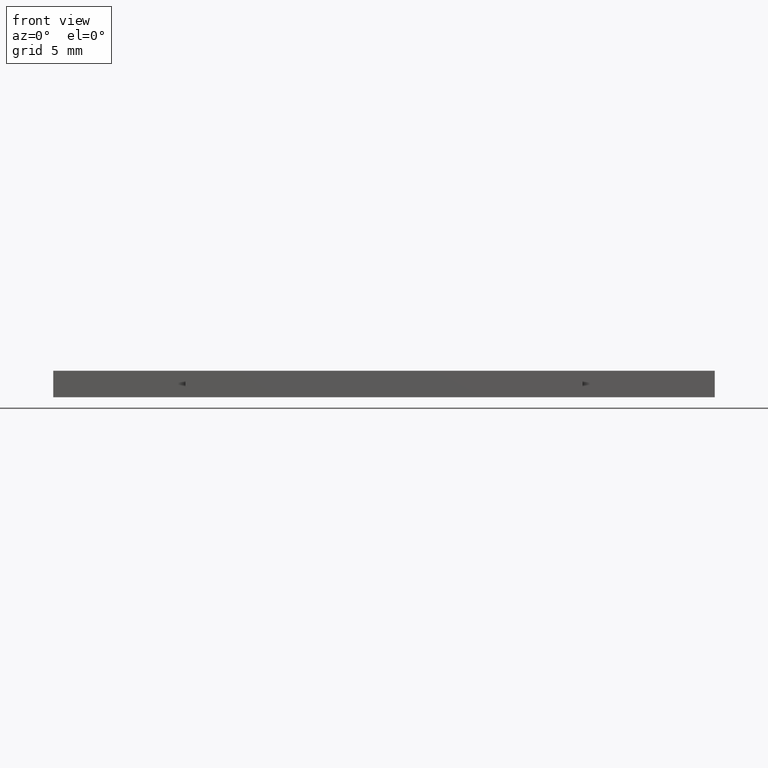
[diagram: clean part render]
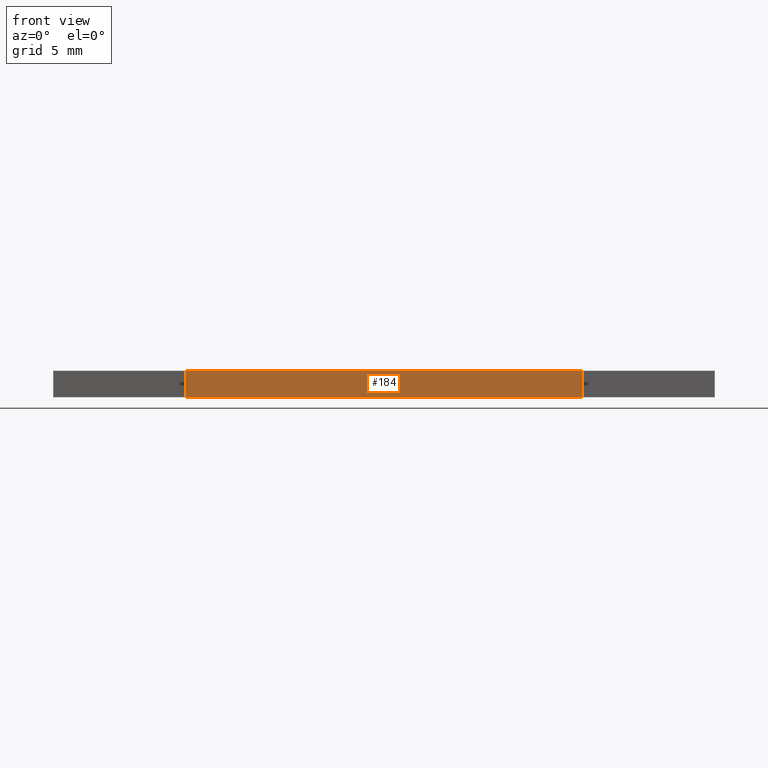
[diagram: same view with one face highlighted and labeled with its STEP entity id]
A machine part, front view. The second image highlights one B-rep face of the part: STEP entity #184.
In plain terms, the highlighted planar face has unit normal (0, -1, 0).
Its self-contained STEP definition (entity closure, byte-faithful):
#18=FACE_OUTER_BOUND('',#28,.T.);
#28=EDGE_LOOP('',(#136,#137,#138,#139));
#39=LINE('',#278,#63);
#45=LINE('',#290,#69);
#47=LINE('',#294,#71);
#48=LINE('',#295,#72);
#63=VECTOR('',#229,10.);
#69=VECTOR('',#237,10.);
#71=VECTOR('',#241,10.);
#72=VECTOR('',#242,10.);
#87=VERTEX_POINT('',#275);
#88=VERTEX_POINT('',#277);
#93=VERTEX_POINT('',#288);
#94=VERTEX_POINT('',#293);
#103=EDGE_CURVE('',#88,#87,#39,.T.);
#109=EDGE_CURVE('',#93,#87,#45,.T.);
#111=EDGE_CURVE('',#93,#94,#47,.T.);
#112=EDGE_CURVE('',#94,#88,#48,.T.);
#136=ORIENTED_EDGE('',*,*,#111,.T.);
#137=ORIENTED_EDGE('',*,*,#112,.T.);
#138=ORIENTED_EDGE('',*,*,#103,.T.);
#139=ORIENTED_EDGE('',*,*,#109,.F.);
#174=PLANE('',#214);
#184=ADVANCED_FACE('',(#18),#174,.T.);
#214=AXIS2_PLACEMENT_3D('',#292,#239,#240);
#229=DIRECTION('',(1.,0.,0.));
#237=DIRECTION('',(0.,0.,-1.));
#239=DIRECTION('center_axis',(0.,-1.,0.));
#240=DIRECTION('ref_axis',(0.,0.,-1.));
#241=DIRECTION('',(-1.,0.,0.));
#242=DIRECTION('',(0.,0.,-1.));
#275=CARTESIAN_POINT('',(15.,-14.,-1.));
#277=CARTESIAN_POINT('',(-15.,-14.,-1.));
#278=CARTESIAN_POINT('',(15.,-14.,-1.));
#288=CARTESIAN_POINT('',(15.,-14.,1.));
#290=CARTESIAN_POINT('',(15.,-14.,0.));
#292=CARTESIAN_POINT('Origin',(15.,-14.,0.));
#293=CARTESIAN_POINT('',(-15.,-14.,1.));
#294=CARTESIAN_POINT('',(15.,-14.,1.));
#295=CARTESIAN_POINT('',(-15.,-14.,0.));